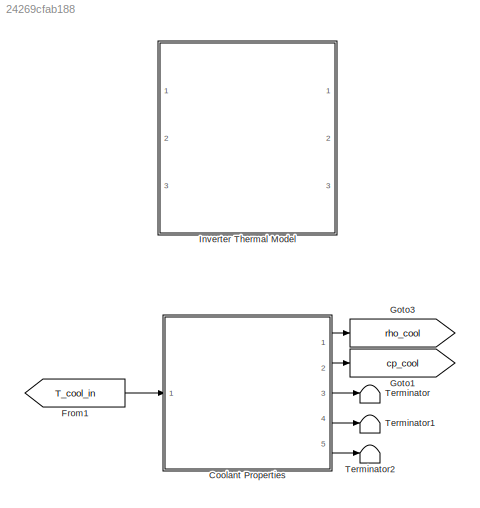
MODEL slx_24269cfab188
KIND model
CONFIG AbsTol = auto
CONFIG EnableMultiTasking = off
CONFIG FixedStep = auto
CONFIG MaxStep = auto
CONFIG MinStep = auto
CONFIG RelTol = 1e-3
CONFIG SampleTimeConstraint = Unconstrained
CONFIG Solver = VariableStepAuto
CONFIG SolverName = VariableStepAuto
CONFIG StartTime = 0.0
CONFIG StopTime = 10.0
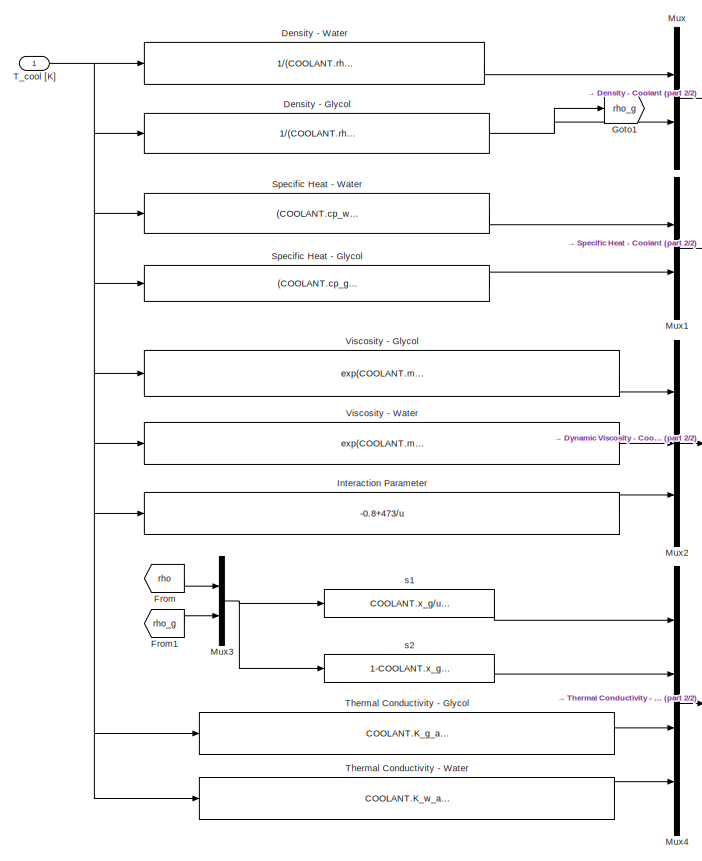
[diagram: Coolant Properties - part 1/2, left side, full height]
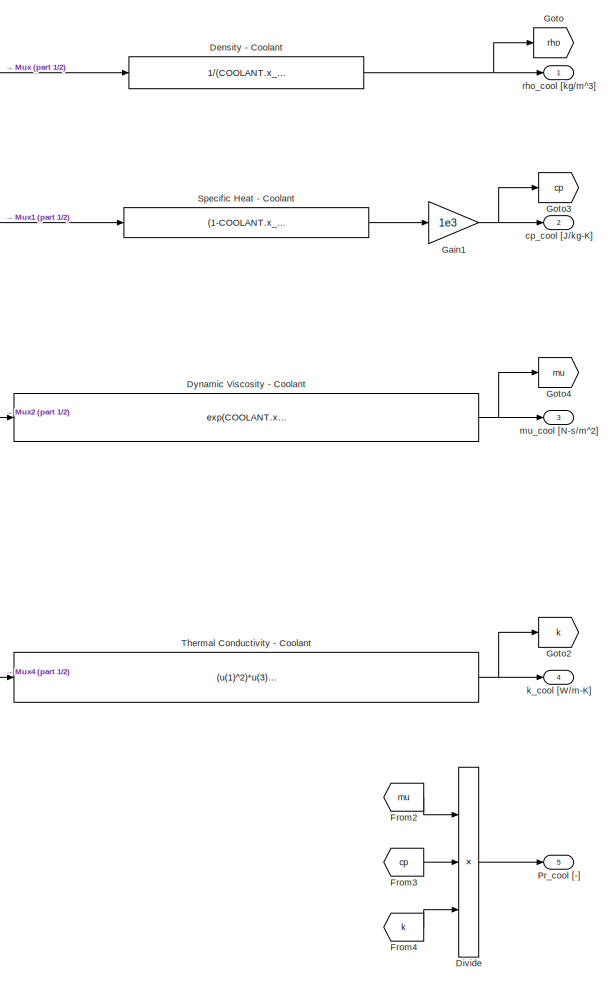
[diagram: Coolant Properties - part 2/2, right side, full height]
BLOCK [SubSystem] Coolant Properties
  Ports = [1, 5]
  RequestExecContextInheritance = off
  Variant = off
BLOCK [Fcn] Coolant Properties/Density - Coolant
  Expr = 1/(COOLANT.x_g/u(1) + COOLANT.x_g/u(2))
BLOCK [Fcn] Coolant Properties/Density - Glycol
  Expr = 1/(COOLANT.rho_g_a+COOLANT.rho_g_b*u+COOLANT.rho_g_c*u^2)
BLOCK [Fcn] Coolant Properties/Density - Water
  Expr = 1/(COOLANT.rho_w_a+COOLANT.rho_w_b*u+COOLANT.rho_w_c*u^2)
BLOCK [Product] Coolant Properties/Divide
  InputSameDT = off
  Inputs = **/
  OutDataTypeStr = Inherit: Inherit via internal rule
  Ports = [3, 1]
  RndMeth = Floor
  SaturateOnIntegerOverflow = off
BLOCK [Fcn] Coolant Properties/Dynamic Viscosity - Coolant
  Expr = exp(COOLANT.x_g*log(u(1))+(1-COOLANT.x_g)*log(u(2))-COOLANT.x_g*(1-COOLANT.x_g)*u(3))
BLOCK [From] Coolant Properties/From
  GotoTag = rho
BLOCK [From] Coolant Properties/From1
  GotoTag = rho_g
BLOCK [From] Coolant Properties/From2
  GotoTag = mu
BLOCK [From] Coolant Properties/From3
  GotoTag = cp
BLOCK [From] Coolant Properties/From4
  GotoTag = k
BLOCK [Gain] Coolant Properties/Gain1
  Gain = 1e3
  OutDataTypeStr = Inherit: Inherit via internal rule
  ParamDataTypeStr = Inherit: Inherit via internal rule
  SaturateOnIntegerOverflow = off
BLOCK [Goto] Coolant Properties/Goto
  GotoTag = rho
BLOCK [Goto] Coolant Properties/Goto1
  GotoTag = rho_g
BLOCK [Goto] Coolant Properties/Goto2
  GotoTag = k
BLOCK [Goto] Coolant Properties/Goto3
  GotoTag = cp
BLOCK [Goto] Coolant Properties/Goto4
  GotoTag = mu
BLOCK [Fcn] Coolant Properties/Interaction Parameter
  Expr = -0.8+473/u
BLOCK [Mux] Coolant Properties/Mux
  DisplayOption = bar
  Inputs = 2
  Ports = [2, 1]
BLOCK [Mux] Coolant Properties/Mux1
  DisplayOption = bar
  Inputs = 2
  Ports = [2, 1]
BLOCK [Mux] Coolant Properties/Mux2
  DisplayOption = bar
  Inputs = 3
  Ports = [3, 1]
BLOCK [Mux] Coolant Properties/Mux3
  DisplayOption = bar
  Inputs = 2
  Ports = [2, 1]
BLOCK [Mux] Coolant Properties/Mux4
  DisplayOption = bar
  Ports = [4, 1]
BLOCK [Outport] Coolant Properties/Pr_cool [-]
  IconDisplay = Port number
  Port = 5
BLOCK [Fcn] Coolant Properties/Specific Heat - Coolant
  Expr = (1-COOLANT.x_g)*u(1) + COOLANT.x_g*u(2)
BLOCK [Fcn] Coolant Properties/Specific Heat - Glycol
  Expr = (COOLANT.cp_g_a+COOLANT.cp_g_b*u)
BLOCK [Fcn] Coolant Properties/Specific Heat - Water
  Expr = (COOLANT.cp_w_a+COOLANT.cp_w_b*u)
BLOCK [Inport] Coolant Properties/T_cool [K]
  IconDisplay = Port number
BLOCK [Fcn] Coolant Properties/Thermal Conductivity - Coolant
  Expr = (u(1)^2)*u(3)+2*u(1)*u(2)*(2/(1/u(4)+1/u(3)))+(u(2)^2)*u(4)
BLOCK [Fcn] Coolant Properties/Thermal Conductivity - Glycol
  Expr = COOLANT.K_g_a + COOLANT.K_g_b*u + COOLANT.K_g_c*u^2
BLOCK [Fcn] Coolant Properties/Thermal Conductivity - Water
  Expr = COOLANT.K_w_a + COOLANT.K_w_b*u + COOLANT.K_w_c*u^2
BLOCK [Fcn] Coolant Properties/Viscosity - Glycol
  Expr = exp(COOLANT.mu_g_a + COOLANT.mu_g_b/u + COOLANT.mu_g_c*u + COOLANT.mu_g_d*u^2)
BLOCK [Fcn] Coolant Properties/Viscosity - Water
  Expr = exp(COOLANT.mu_w_a + COOLANT.mu_w_b/u + COOLANT.mu_w_c*u + COOLANT.mu_w_d*u^2)
BLOCK [Outport] Coolant Properties/cp_cool [J//kg-K]
  IconDisplay = Port number
  Port = 2
BLOCK [Outport] Coolant Properties/k_cool [W//m-K]
  IconDisplay = Port number
  Port = 4
BLOCK [Outport] Coolant Properties/mu_cool [N-s//m^2]
  IconDisplay = Port number
  Port = 3
BLOCK [Outport] Coolant Properties/rho_cool [kg//m^3]
  IconDisplay = Port number
BLOCK [Fcn] Coolant Properties/s1
  Expr = COOLANT.x_g/u(2)*u(1)
BLOCK [Fcn] Coolant Properties/s2
  Expr = 1-COOLANT.x_g/u(2)*u(1)
BLOCK [From] From1
  GotoTag = T_cool_in
  TagVisibility = scoped
BLOCK [Goto] Goto1
  GotoTag = cp_cool
  TagVisibility = scoped
BLOCK [Goto] Goto3
  GotoTag = rho_cool
  TagVisibility = scoped
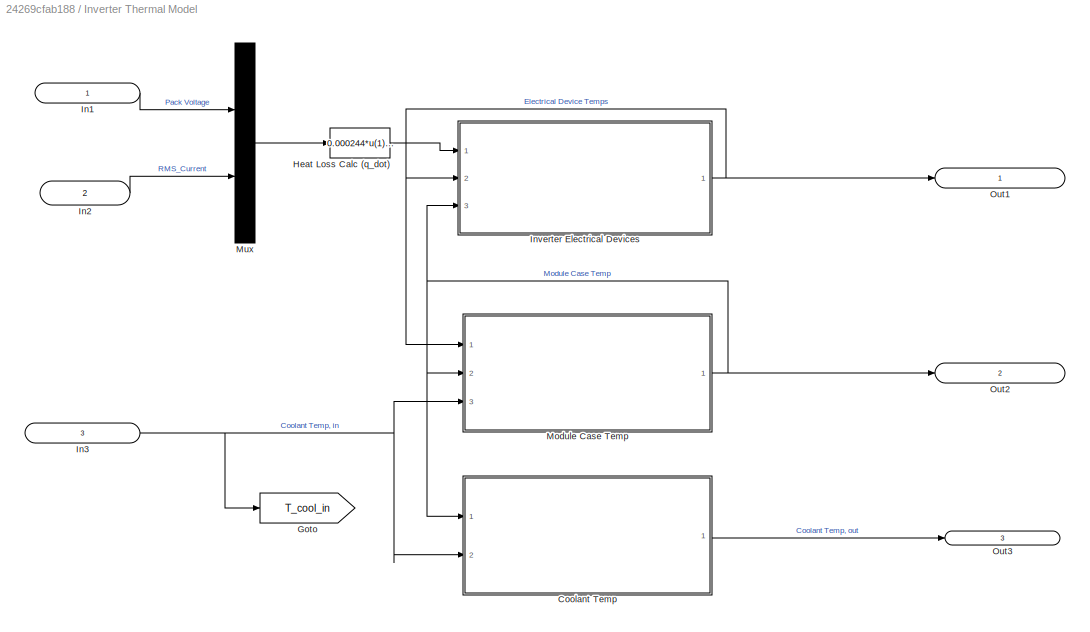
BLOCK [SubSystem] Inverter Thermal Model
  Ports = [3, 3]
  RequestExecContextInheritance = off
  Variant = off
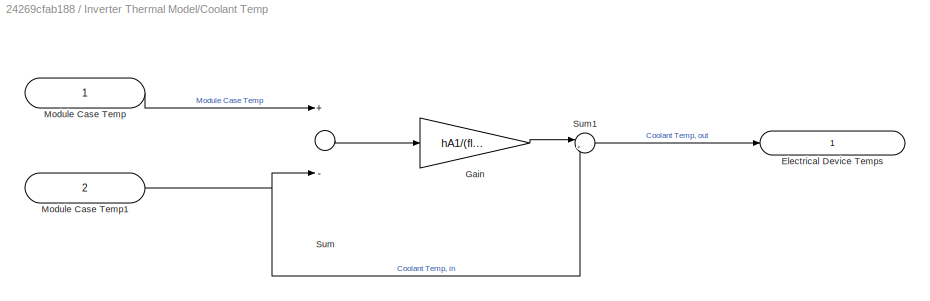
BLOCK [SubSystem] Inverter Thermal Model/Coolant Temp
  Ports = [2, 1]
  RequestExecContextInheritance = off
  Variant = off
BLOCK [Outport] Inverter Thermal Model/Coolant Temp/Electrical Device Temps
  IconDisplay = Port number and signal name
BLOCK [Gain] Inverter Thermal Model/Coolant Temp/Gain
  Gain = hA1/(flowrate*cp)
  OutDataTypeStr = Inherit: Inherit via internal rule
  ParamDataTypeStr = Inherit: Inherit via internal rule
  SaturateOnIntegerOverflow = off
BLOCK [Inport] Inverter Thermal Model/Coolant Temp/Module Case Temp
  IconDisplay = Port number and signal name
BLOCK [Inport] Inverter Thermal Model/Coolant Temp/Module Case Temp1
  IconDisplay = Port number and signal name
  Port = 2
BLOCK [Sum] Inverter Thermal Model/Coolant Temp/Sum
  InputSameDT = off
  Inputs = +-
  OutDataTypeStr = Inherit: Inherit via internal rule
  Ports = [2, 1]
  SaturateOnIntegerOverflow = off
BLOCK [Sum] Inverter Thermal Model/Coolant Temp/Sum1
  IconShape = round
  InputSameDT = off
  Inputs = |++
  OutDataTypeStr = Inherit: Inherit via internal rule
  Ports = [2, 1]
  SaturateOnIntegerOverflow = off
BLOCK [Goto] Inverter Thermal Model/Goto
  GotoTag = T_cool_in
  TagVisibility = global
BLOCK [Fcn] Inverter Thermal Model/Heat Loss Calc (q_dot)
  Expr = 0.000244*u(1)^1.072*u(2)^1.695+456.4
BLOCK [Inport] Inverter Thermal Model/In1
  IconDisplay = Port number and signal name
BLOCK [Inport] Inverter Thermal Model/In2
  IconDisplay = Port number and signal name
  Port = 2
BLOCK [Inport] Inverter Thermal Model/In3
  IconDisplay = Port number and signal name
  Port = 3
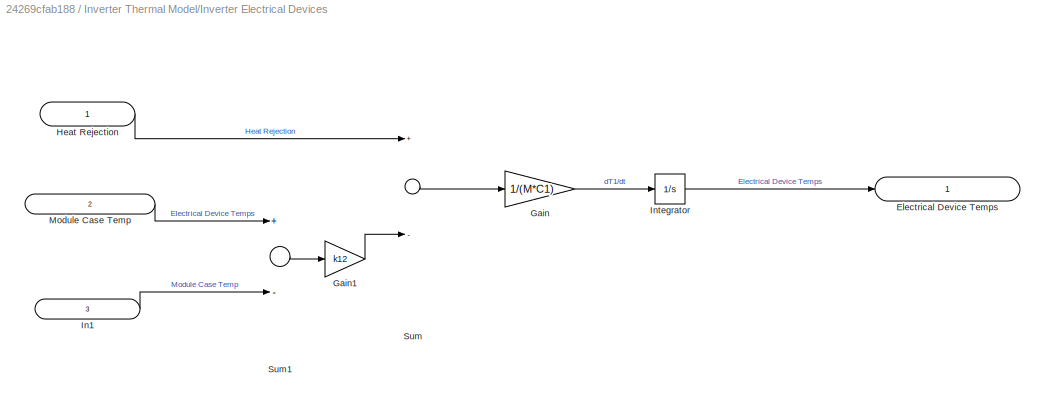
BLOCK [SubSystem] Inverter Thermal Model/Inverter Electrical Devices
  Ports = [3, 1]
  RequestExecContextInheritance = off
  Variant = off
BLOCK [Outport] Inverter Thermal Model/Inverter Electrical Devices/Electrical Device Temps
  IconDisplay = Port number and signal name
BLOCK [Gain] Inverter Thermal Model/Inverter Electrical Devices/Gain
  Gain = 1/(M*C1)
  OutDataTypeStr = Inherit: Inherit via internal rule
  ParamDataTypeStr = Inherit: Inherit via internal rule
  SaturateOnIntegerOverflow = off
BLOCK [Gain] Inverter Thermal Model/Inverter Electrical Devices/Gain1
  Gain = k12
  OutDataTypeStr = Inherit: Inherit via internal rule
  ParamDataTypeStr = Inherit: Inherit via internal rule
  SaturateOnIntegerOverflow = off
BLOCK [Inport] Inverter Thermal Model/Inverter Electrical Devices/Heat Rejection
  IconDisplay = Port number and signal name
BLOCK [Inport] Inverter Thermal Model/Inverter Electrical Devices/In1
  IconDisplay = Port number and signal name
  Port = 3
BLOCK [Integrator] Inverter Thermal Model/Inverter Electrical Devices/Integrator
  Ports = [1, 1]
BLOCK [Inport] Inverter Thermal Model/Inverter Electrical Devices/Module Case Temp
  IconDisplay = Port number and signal name
  Port = 2
BLOCK [Sum] Inverter Thermal Model/Inverter Electrical Devices/Sum
  InputSameDT = off
  Inputs = +-
  OutDataTypeStr = Inherit: Inherit via internal rule
  Ports = [2, 1]
  SaturateOnIntegerOverflow = off
BLOCK [Sum] Inverter Thermal Model/Inverter Electrical Devices/Sum1
  InputSameDT = off
  Inputs = +-
  OutDataTypeStr = Inherit: Inherit via internal rule
  Ports = [2, 1]
  SaturateOnIntegerOverflow = off
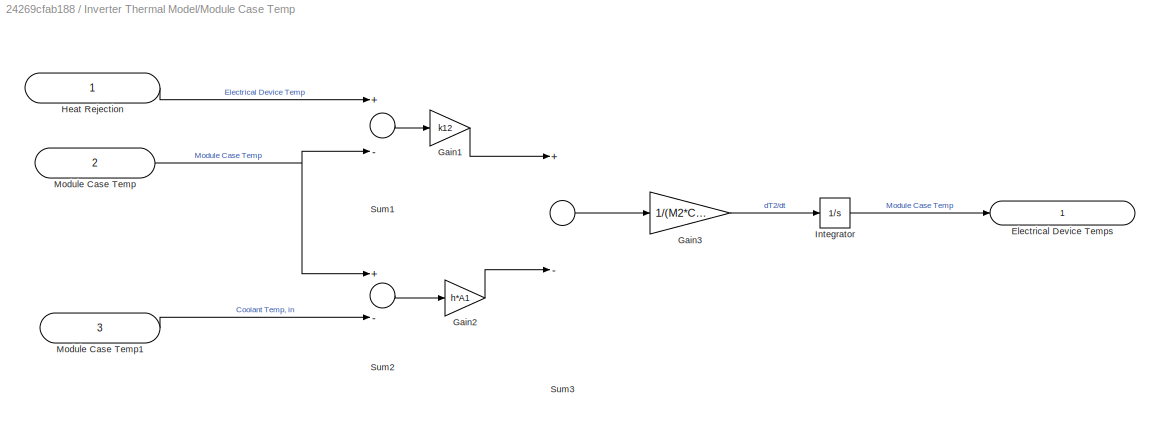
BLOCK [SubSystem] Inverter Thermal Model/Module Case Temp
  Ports = [3, 1]
  RequestExecContextInheritance = off
  Variant = off
BLOCK [Outport] Inverter Thermal Model/Module Case Temp/Electrical Device Temps
  IconDisplay = Port number and signal name
BLOCK [Gain] Inverter Thermal Model/Module Case Temp/Gain1
  Gain = k12
  OutDataTypeStr = Inherit: Inherit via internal rule
  ParamDataTypeStr = Inherit: Inherit via internal rule
  SaturateOnIntegerOverflow = off
BLOCK [Gain] Inverter Thermal Model/Module Case Temp/Gain2
  Gain = h*A1
  OutDataTypeStr = Inherit: Inherit via internal rule
  ParamDataTypeStr = Inherit: Inherit via internal rule
  SaturateOnIntegerOverflow = off
BLOCK [Gain] Inverter Thermal Model/Module Case Temp/Gain3
  Gain = 1/(M2*C2)
  OutDataTypeStr = Inherit: Inherit via internal rule
  ParamDataTypeStr = Inherit: Inherit via internal rule
  SaturateOnIntegerOverflow = off
BLOCK [Inport] Inverter Thermal Model/Module Case Temp/Heat Rejection
  IconDisplay = Port number and signal name
BLOCK [Integrator] Inverter Thermal Model/Module Case Temp/Integrator
  Ports = [1, 1]
BLOCK [Inport] Inverter Thermal Model/Module Case Temp/Module Case Temp
  IconDisplay = Port number and signal name
  Port = 2
BLOCK [Inport] Inverter Thermal Model/Module Case Temp/Module Case Temp1
  IconDisplay = Port number and signal name
  Port = 3
BLOCK [Sum] Inverter Thermal Model/Module Case Temp/Sum1
  InputSameDT = off
  Inputs = +-
  OutDataTypeStr = Inherit: Inherit via internal rule
  Ports = [2, 1]
  SaturateOnIntegerOverflow = off
BLOCK [Sum] Inverter Thermal Model/Module Case Temp/Sum2
  InputSameDT = off
  Inputs = +-
  OutDataTypeStr = Inherit: Inherit via internal rule
  Ports = [2, 1]
  SaturateOnIntegerOverflow = off
BLOCK [Sum] Inverter Thermal Model/Module Case Temp/Sum3
  InputSameDT = off
  Inputs = +-
  OutDataTypeStr = Inherit: Inherit via internal rule
  Ports = [2, 1]
  SaturateOnIntegerOverflow = off
BLOCK [Mux] Inverter Thermal Model/Mux
  DisplayOption = bar
  Inputs = 2
  Ports = [2, 1]
BLOCK [Outport] Inverter Thermal Model/Out1
  IconDisplay = Port number and signal name
BLOCK [Outport] Inverter Thermal Model/Out2
  IconDisplay = Port number and signal name
  Port = 2
BLOCK [Outport] Inverter Thermal Model/Out3
  IconDisplay = Port number and signal name
  Port = 3
BLOCK [Terminator] Terminator
BLOCK [Terminator] Terminator1
BLOCK [Terminator] Terminator2
NET Coolant Properties/Density - Coolant:1 -> Coolant Properties/Goto:1, Coolant Properties/rho_cool [kg//m^3]:1
NET Coolant Properties/Density - Glycol:1 -> Coolant Properties/Goto1:1, Coolant Properties/Mux:2
LINE Coolant Properties/Density - Water:1 -> Coolant Properties/Mux:1
LINE Coolant Properties/Divide:1 -> Coolant Properties/Pr_cool [-]:1
NET Coolant Properties/Dynamic Viscosity - Coolant:1 -> Coolant Properties/Goto4:1, Coolant Properties/mu_cool [N-s//m^2]:1
LINE Coolant Properties/From1:1 -> Coolant Properties/Mux3:2
LINE Coolant Properties/From2:1 -> Coolant Properties/Divide:1
LINE Coolant Properties/From3:1 -> Coolant Properties/Divide:2
LINE Coolant Properties/From4:1 -> Coolant Properties/Divide:3
LINE Coolant Properties/From:1 -> Coolant Properties/Mux3:1
NET Coolant Properties/Gain1:1 -> Coolant Properties/Goto3:1, Coolant Properties/cp_cool [J//kg-K]:1
LINE Coolant Properties/Interaction Parameter:1 -> Coolant Properties/Mux2:3
LINE Coolant Properties/Mux1:1 -> Coolant Properties/Specific Heat - Coolant:1
LINE Coolant Properties/Mux2:1 -> Coolant Properties/Dynamic Viscosity - Coolant:1
NET Coolant Properties/Mux3:1 -> Coolant Properties/s1:1, Coolant Properties/s2:1
LINE Coolant Properties/Mux4:1 -> Coolant Properties/Thermal Conductivity - Coolant:1
LINE Coolant Properties/Mux:1 -> Coolant Properties/Density - Coolant:1
LINE Coolant Properties/Specific Heat - Coolant:1 -> Coolant Properties/Gain1:1
LINE Coolant Properties/Specific Heat - Glycol:1 -> Coolant Properties/Mux1:2
LINE Coolant Properties/Specific Heat - Water:1 -> Coolant Properties/Mux1:1
NET Coolant Properties/T_cool [K]:1 -> Coolant Properties/Density - Glycol:1, Coolant Properties/Density - Water:1, Coolant Properties/Interaction Parameter:1, Coolant Properties/Specific Heat - Glycol:1, Coolant Properties/Specific Heat - Water:1, Coolant Properties/Thermal Conductivity - Glycol:1, Coolant Properties/Thermal Conductivity - Water:1, Coolant Properties/Viscosity - Glycol:1, Coolant Properties/Viscosity - Water:1
NET Coolant Properties/Thermal Conductivity - Coolant:1 -> Coolant Properties/Goto2:1, Coolant Properties/k_cool [W//m-K]:1
LINE Coolant Properties/Thermal Conductivity - Glycol:1 -> Coolant Properties/Mux4:3
LINE Coolant Properties/Thermal Conductivity - Water:1 -> Coolant Properties/Mux4:4
LINE Coolant Properties/Viscosity - Glycol:1 -> Coolant Properties/Mux2:1
LINE Coolant Properties/Viscosity - Water:1 -> Coolant Properties/Mux2:2
LINE Coolant Properties/s1:1 -> Coolant Properties/Mux4:1
LINE Coolant Properties/s2:1 -> Coolant Properties/Mux4:2
LINE Coolant Properties:1 -> Goto3:1
LINE Coolant Properties:2 -> Goto1:1
LINE Coolant Properties:3 -> Terminator:1
LINE Coolant Properties:4 -> Terminator1:1
LINE Coolant Properties:5 -> Terminator2:1
LINE From1:1 -> Coolant Properties:1
LINE Inverter Thermal Model/Coolant Temp/Gain:1 -> Inverter Thermal Model/Coolant Temp/Sum1:1
NET Inverter Thermal Model/Coolant Temp/Module Case Temp1:1 -> Inverter Thermal Model/Coolant Temp/Sum1:2, Inverter Thermal Model/Coolant Temp/Sum:2
LINE Inverter Thermal Model/Coolant Temp/Module Case Temp:1 -> Inverter Thermal Model/Coolant Temp/Sum:1
LINE Inverter Thermal Model/Coolant Temp/Sum1:1 -> Inverter Thermal Model/Coolant Temp/Electrical Device Temps:1
LINE Inverter Thermal Model/Coolant Temp/Sum:1 -> Inverter Thermal Model/Coolant Temp/Gain:1
LINE Inverter Thermal Model/Coolant Temp:1 -> Inverter Thermal Model/Out3:1
LINE Inverter Thermal Model/Heat Loss Calc (q_dot):1 -> Inverter Thermal Model/Inverter Electrical Devices:1
LINE Inverter Thermal Model/In1:1 -> Inverter Thermal Model/Mux:1
LINE Inverter Thermal Model/In2:1 -> Inverter Thermal Model/Mux:2
NET Inverter Thermal Model/In3:1 -> Inverter Thermal Model/Coolant Temp:2, Inverter Thermal Model/Goto:1, Inverter Thermal Model/Module Case Temp:3
LINE Inverter Thermal Model/Inverter Electrical Devices/Gain1:1 -> Inverter Thermal Model/Inverter Electrical Devices/Sum:2
LINE Inverter Thermal Model/Inverter Electrical Devices/Gain:1 -> Inverter Thermal Model/Inverter Electrical Devices/Integrator:1
LINE Inverter Thermal Model/Inverter Electrical Devices/Heat Rejection:1 -> Inverter Thermal Model/Inverter Electrical Devices/Sum:1
LINE Inverter Thermal Model/Inverter Electrical Devices/In1:1 -> Inverter Thermal Model/Inverter Electrical Devices/Sum1:2
LINE Inverter Thermal Model/Inverter Electrical Devices/Integrator:1 -> Inverter Thermal Model/Inverter Electrical Devices/Electrical Device Temps:1
LINE Inverter Thermal Model/Inverter Electrical Devices/Module Case Temp:1 -> Inverter Thermal Model/Inverter Electrical Devices/Sum1:1
LINE Inverter Thermal Model/Inverter Electrical Devices/Sum1:1 -> Inverter Thermal Model/Inverter Electrical Devices/Gain1:1
LINE Inverter Thermal Model/Inverter Electrical Devices/Sum:1 -> Inverter Thermal Model/Inverter Electrical Devices/Gain:1
NET Inverter Thermal Model/Inverter Electrical Devices:1 -> Inverter Thermal Model/Inverter Electrical Devices:2, Inverter Thermal Model/Module Case Temp:1, Inverter Thermal Model/Out1:1
LINE Inverter Thermal Model/Module Case Temp/Gain1:1 -> Inverter Thermal Model/Module Case Temp/Sum3:1
LINE Inverter Thermal Model/Module Case Temp/Gain2:1 -> Inverter Thermal Model/Module Case Temp/Sum3:2
LINE Inverter Thermal Model/Module Case Temp/Gain3:1 -> Inverter Thermal Model/Module Case Temp/Integrator:1
LINE Inverter Thermal Model/Module Case Temp/Heat Rejection:1 -> Inverter Thermal Model/Module Case Temp/Sum1:1
LINE Inverter Thermal Model/Module Case Temp/Integrator:1 -> Inverter Thermal Model/Module Case Temp/Electrical Device Temps:1
LINE Inverter Thermal Model/Module Case Temp/Module Case Temp1:1 -> Inverter Thermal Model/Module Case Temp/Sum2:2
NET Inverter Thermal Model/Module Case Temp/Module Case Temp:1 -> Inverter Thermal Model/Module Case Temp/Sum1:2, Inverter Thermal Model/Module Case Temp/Sum2:1
LINE Inverter Thermal Model/Module Case Temp/Sum1:1 -> Inverter Thermal Model/Module Case Temp/Gain1:1
LINE Inverter Thermal Model/Module Case Temp/Sum2:1 -> Inverter Thermal Model/Module Case Temp/Gain2:1
LINE Inverter Thermal Model/Module Case Temp/Sum3:1 -> Inverter Thermal Model/Module Case Temp/Gain3:1
NET Inverter Thermal Model/Module Case Temp:1 -> Inverter Thermal Model/Coolant Temp:1, Inverter Thermal Model/Inverter Electrical Devices:3, Inverter Thermal Model/Module Case Temp:2, Inverter Thermal Model/Out2:1
LINE Inverter Thermal Model/Mux:1 -> Inverter Thermal Model/Heat Loss Calc (q_dot):1
note: NET lines group one-source signal fan-out (src -> all destinations, sorted); 1:1 wires keep LINE
